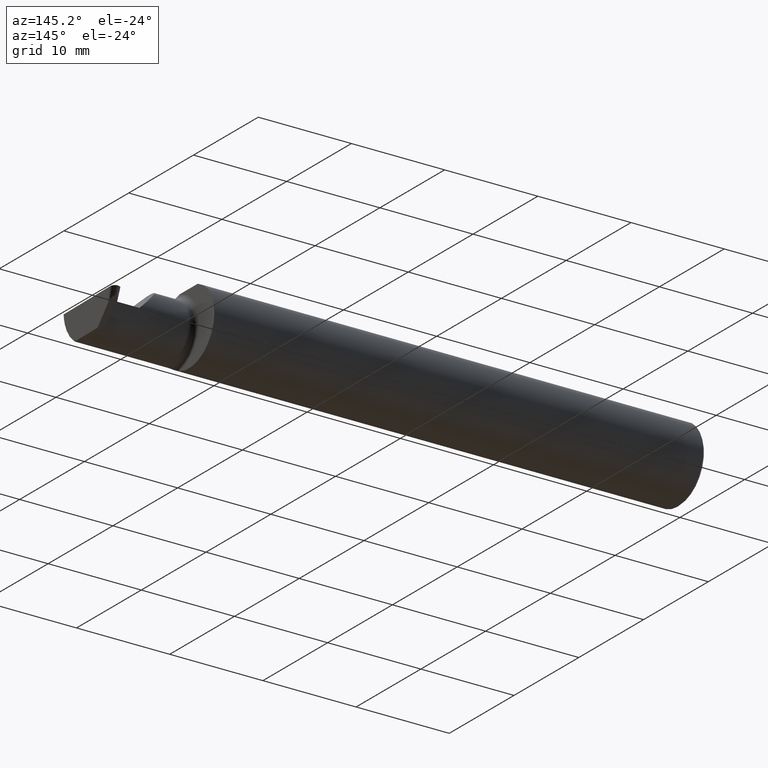
[diagram: clean part render]
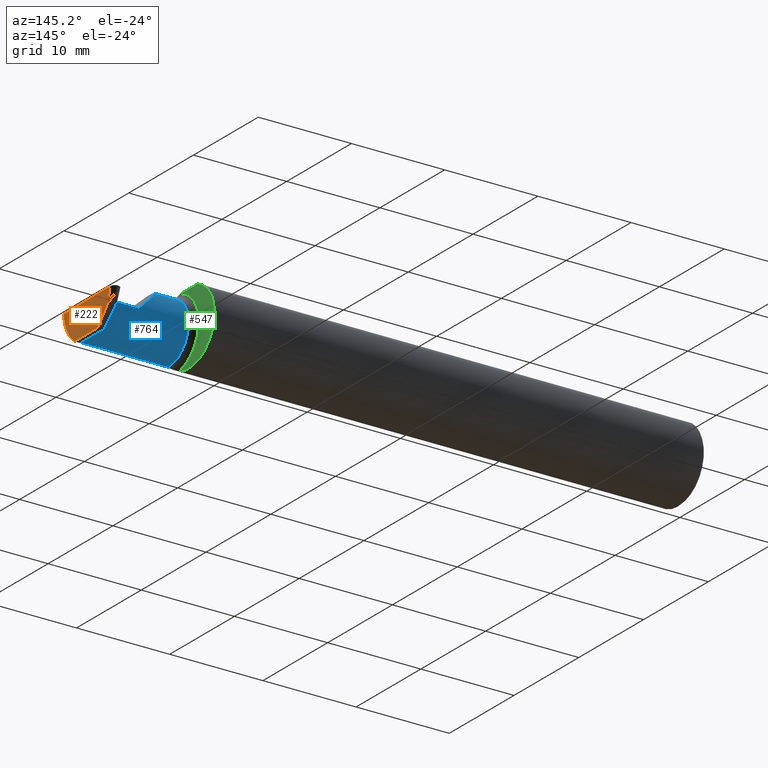
[diagram: same view with three faces highlighted in distinct colors, each labeled with its STEP entity id]
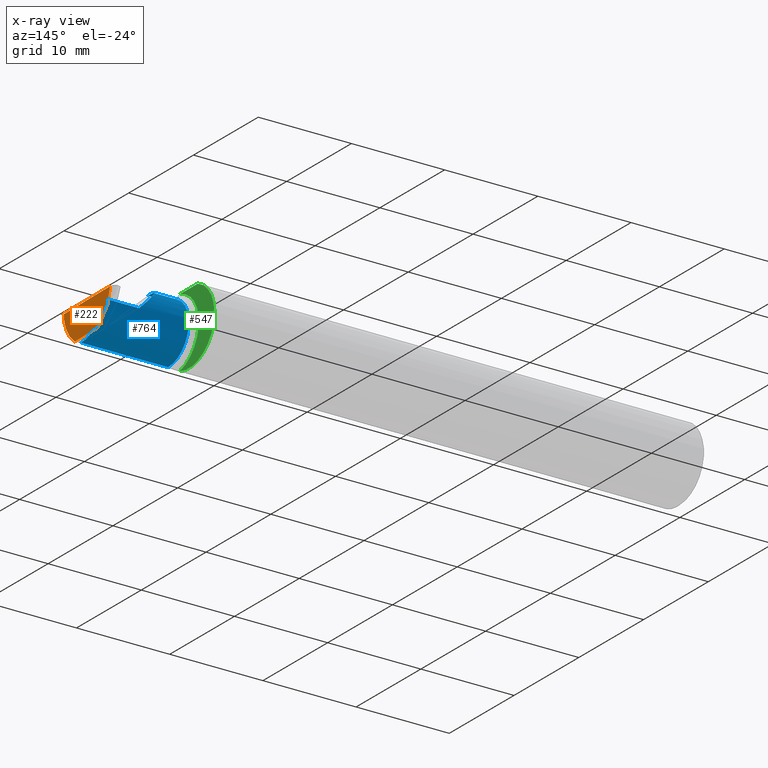
[diagram: x-ray of the same camera — body ghosted, the three highlighted faces saturated]
A machine part, auxiliary view with three faces highlighted in distinct colors.
The next image is the same camera in x-ray (body ghosted, the three faces saturated) — at least one of them is partly hidden behind the body in this view.
Their STEP definitions:

[orange] entity #222 — the highlighted planar face has unit normal (-0.9992, 0.0174, 0.0349).
#5 = CARTESIAN_POINT ( 'NONE',  ( 2.499981158297549744, 0.1333832200032812054, 0.000000000000000000 ) ) ;
#37 = VECTOR ( 'NONE', #796, 39.37007874015748143 ) ;
#59 = EDGE_CURVE ( 'NONE', #634, #687, #667, .T. ) ;
#69 = CARTESIAN_POINT ( 'NONE',  ( 2.497431183685123735, 0.1119346375676058408, -0.06229120642041485051 ) ) ;
#70 = DIRECTION ( 'NONE',  ( -0.9992386149554827179, 0.01744177490282277851, 0.03489949670250104552 ) ) ;
#85 = ORIENTED_EDGE ( 'NONE', *, *, #409, .T. ) ;
#91 = VERTEX_POINT ( 'NONE', #419 ) ;
#92 = VECTOR ( 'NONE', #670, 39.37007874015748143 ) ;
#96 = VERTEX_POINT ( 'NONE', #661 ) ;
#123 = CARTESIAN_POINT ( 'NONE',  ( 2.494928209896765114, -0.1560999999999999888, 0.000000000000000000 ) ) ;
#125 = CARTESIAN_POINT ( 'NONE',  ( 2.499997065210553426, 0.1342945264389270033, 0.000000000000000000 ) ) ;
#129 = CARTESIAN_POINT ( 'NONE',  ( 2.493178846255211134, -0.1561000000000000165, -0.05008759057876781273 ) ) ;
#158 = ORIENTED_EDGE ( 'NONE', *, *, #760, .F. ) ;
#184 = VECTOR ( 'NONE', #188, 39.37007874015748854 ) ;
#188 = DIRECTION ( 'NONE',  ( -0.03701368837992422695, -0.7066222423871549863, -0.7066222423871629799 ) ) ;
#193 =( BOUNDED_CURVE ( )  B_SPLINE_CURVE ( 3, ( #361, #483, #539, #605 ),
 .UNSPECIFIED., .F., .T. ) 
 B_SPLINE_CURVE_WITH_KNOTS ( ( 4, 4 ),
 ( 0.4273896528388657634, 0.4634648172053296156 ),
 .UNSPECIFIED. ) 
 CURVE ( )  GEOMETRIC_REPRESENTATION_ITEM ( )  RATIONAL_B_SPLINE_CURVE ( ( 1.000000000000000000, 0.9998915514833921492, 0.9998915514833921492, 1.000000000000000000 ) ) 
 REPRESENTATION_ITEM ( '' )  );
#196 = VERTEX_POINT ( 'NONE', #318 ) ;
#201 = CARTESIAN_POINT ( 'NONE',  ( 2.495646440191340965, 0.07786239281539021617, -0.09636345117263085680 ) ) ;
#222 = ADVANCED_FACE ( 'NONE', ( #386 ), #695, .F. ) ;
#232 = EDGE_CURVE ( 'NONE', #634, #96, #804, .T. ) ;
#235 = ORIENTED_EDGE ( 'NONE', *, *, #601, .F. ) ;
#240 = ORIENTED_EDGE ( 'NONE', *, *, #401, .T. ) ;
#241 = ORIENTED_EDGE ( 'NONE', *, *, #59, .T. ) ;
#294 = AXIS2_PLACEMENT_3D ( 'NONE', #125, #70, #310 ) ;
#305 = VERTEX_POINT ( 'NONE', #585 ) ;
#310 = DIRECTION ( 'NONE',  ( 0.03490480639812536257, 0.000000000000000000, 0.9993906415863165194 ) ) ;
#318 = CARTESIAN_POINT ( 'NONE',  ( 2.491731938133923130, -0.08909999999999985987, -0.1250000000000000278 ) ) ;
#361 = CARTESIAN_POINT ( 'NONE',  ( 2.491656083944432165, -0.09360841750841740472, -0.1249186702281520484 ) ) ;
#374 = CARTESIAN_POINT ( 'NONE',  ( 2.491792233050964533, -0.08564570651617034458, -0.1250000000000000278 ) ) ;
#386 = FACE_OUTER_BOUND ( 'NONE', #425, .T. ) ;
#401 = EDGE_CURVE ( 'NONE', #305, #196, #193, .T. ) ;
#409 = EDGE_CURVE ( 'NONE', #687, #91, #785, .T. ) ;
#419 = CARTESIAN_POINT ( 'NONE',  ( 2.494928209896765114, -0.1560999999999999888, 0.000000000000000000 ) ) ;
#425 = EDGE_LOOP ( 'NONE', ( #475, #241, #85, #158, #240, #235 ) ) ;
#475 = ORIENTED_EDGE ( 'NONE', *, *, #232, .F. ) ;
#483 = CARTESIAN_POINT ( 'NONE',  ( 2.491680411974855680, -0.09210618219364763437, -0.1249728871357008164 ) ) ;
#536 = CARTESIAN_POINT ( 'NONE',  ( 2.499992648711913734, 0.1334798692399048747, 0.0002806897643215264617 ) ) ;
#539 = CARTESIAN_POINT ( 'NONE',  ( 2.491705699447075428, -0.09060321336276823401, -0.1250000000000000833 ) ) ;
#559 = CARTESIAN_POINT ( 'NONE',  ( 2.491656083944432165, -0.09360841750841740472, -0.1249186702281520484 ) ) ;
#585 = CARTESIAN_POINT ( 'NONE',  ( 2.491656083944432165, -0.09360841750841740472, -0.1249186702281520484 ) ) ;
#601 = EDGE_CURVE ( 'NONE', #96, #196, #673, .T. ) ;
#602 = CARTESIAN_POINT ( 'NONE',  ( 2.499997065210553426, 0.1342945264389270033, 0.000000000000000000 ) ) ;
#605 = CARTESIAN_POINT ( 'NONE',  ( 2.491731938133923130, -0.08909999999999985987, -0.1250000000000000278 ) ) ;
#615 = DIRECTION ( 'NONE',  ( -0.01745240643727612520, -0.9998476951563912696, 0.000000000000000000 ) ) ;
#634 = VERTEX_POINT ( 'NONE', #69 ) ;
#661 = CARTESIAN_POINT ( 'NONE',  ( 2.494146424721983557, 0.04922584398802135747, -0.1250000000000000278 ) ) ;
#667 = LINE ( 'NONE', #536, #92 ) ;
#670 = DIRECTION ( 'NONE',  ( 0.03867711768363010783, 0.3253245514560481610, 0.9448111011136606230 ) ) ;
#673 = LINE ( 'NONE', #374, #755 ) ;
#683 = CARTESIAN_POINT ( 'NONE',  ( 2.492005481760536156, -0.1336908980339254205, -0.09488266708345013956 ) ) ;
#687 = VERTEX_POINT ( 'NONE', #5 ) ;
#695 = PLANE ( 'NONE',  #294 ) ;
#755 = VECTOR ( 'NONE', #615, 39.37007874015748854 ) ;
#760 = EDGE_CURVE ( 'NONE', #305, #91, #772, .T. ) ;
#772 =( BOUNDED_CURVE ( )  B_SPLINE_CURVE ( 3, ( #559, #683, #129, #123 ),
 .UNSPECIFIED., .F., .T. ) 
 B_SPLINE_CURVE_WITH_KNOTS ( ( 4, 4 ),
 ( 0.1796232990704038912, 1.107331509589568608 ),
 .UNSPECIFIED. ) 
 CURVE ( )  GEOMETRIC_REPRESENTATION_ITEM ( )  RATIONAL_B_SPLINE_CURVE ( ( 1.000000000000000000, 0.9295565493311498395, 0.9295565493311498395, 1.000000000000000000 ) ) 
 REPRESENTATION_ITEM ( '' )  );
#785 = LINE ( 'NONE', #602, #37 ) ;
#796 = DIRECTION ( 'NONE',  ( -0.01745240643727612520, -0.9998476951563912696, 0.000000000000000000 ) ) ;
#804 = LINE ( 'NONE', #201, #184 ) ;

[blue] entity #764 — the highlighted cylindrical surface (edge-blend (fillet) strip) has radius 3.175 mm, axis along (-1, -0, -0).
#3 = CARTESIAN_POINT ( 'NONE',  ( 2.100000000000000089, -0.08910000000000001252, 0.1250000000000000555 ) ) ;
#9 = FACE_OUTER_BOUND ( 'NONE', #354, .T. ) ;
#35 = DIRECTION ( 'NONE',  ( -1.000000000000000000, -0.000000000000000000, -0.000000000000000000 ) ) ;
#53 = AXIS2_PLACEMENT_3D ( 'NONE', #626, #756, #204 ) ;
#63 = CARTESIAN_POINT ( 'NONE',  ( 2.455817866257967275, 0.03559550628247790810, -0.008719559218017784372 ) ) ;
#104 = CARTESIAN_POINT ( 'NONE',  ( 2.184999999999999165, -0.08910000000000001252, 0.1250000000000000278 ) ) ;
#110 = CARTESIAN_POINT ( 'NONE',  ( 2.455919364163807739, 0.03569700418831858735, -0.005813039478678525517 ) ) ;
#135 = CARTESIAN_POINT ( 'NONE',  ( 2.236776695296636142, 0.03589999999999995972, 0.07322330470336316233 ) ) ;
#156 = VERTEX_POINT ( 'NONE', #3 ) ;
#164 = CARTESIAN_POINT ( 'NONE',  ( 2.467687720866161172, -0.01986741890188695875, -0.1250000000000000555 ) ) ;
#170 = CARTESIAN_POINT ( 'NONE',  ( 2.184999999999998277, -0.01587669529663690224, 0.1250000000000000555 ) ) ;
#171 = VERTEX_POINT ( 'NONE', #566 ) ;
#186 = VECTOR ( 'NONE', #35, 39.37007874015748143 ) ;
#198 = EDGE_CURVE ( 'NONE', #156, #295, #532, .T. ) ;
#199 = CARTESIAN_POINT ( 'NONE',  ( 2.310000000000000053, 0.03590000000000000135, 5.204748896376251932E-17 ) ) ;
#204 = DIRECTION ( 'NONE',  ( 0.000000000000000000, 0.000000000000000000, 1.000000000000000000 ) ) ;
#239 = CARTESIAN_POINT ( 'NONE',  ( 2.455817866257967275, 0.03559550628247790810, -0.008719559218017784372 ) ) ;
#244 = VERTEX_POINT ( 'NONE', #710 ) ;
#282 = VERTEX_POINT ( 'NONE', #645 ) ;
#288 = ORIENTED_EDGE ( 'NONE', *, *, #531, .T. ) ;
#291 = EDGE_CURVE ( 'NONE', #244, #156, #402, .T. ) ;
#295 = VERTEX_POINT ( 'NONE', #405 ) ;
#298 = CARTESIAN_POINT ( 'NONE',  ( 2.456122359975489111, 0.03589999999999995278, 0.000000000000000000 ) ) ;
#299 = ORIENTED_EDGE ( 'NONE', *, *, #622, .T. ) ;
#304 = VECTOR ( 'NONE', #694, 39.37007874015748143 ) ;
#354 = EDGE_LOOP ( 'NONE', ( #456, #735, #580, #754, #288, #299, #749, #638 ) ) ;
#360 = VERTEX_POINT ( 'NONE', #779 ) ;
#376 = CARTESIAN_POINT ( 'NONE',  ( 2.075000000000000178, -0.08909999999999999865, -0.1250000000000000278 ) ) ;
#381 = DIRECTION ( 'NONE',  ( -1.000000000000000000, -0.000000000000000000, -0.000000000000000000 ) ) ;
#396 = AXIS2_PLACEMENT_3D ( 'NONE', #440, #381, #616 ) ;
#397 = VECTOR ( 'NONE', #466, 39.37007874015748143 ) ;
#400 = EDGE_CURVE ( 'NONE', #597, #282, #674, .T. ) ;
#402 = LINE ( 'NONE', #521, #397 ) ;
#405 = CARTESIAN_POINT ( 'NONE',  ( 2.100000000000000089, -0.08909999999999999865, -0.1250000000000000555 ) ) ;
#423 = CARTESIAN_POINT ( 'NONE',  ( 2.456020862069648647, 0.03579850209415926660, -0.002906519739339262758 ) ) ;
#438 = CARTESIAN_POINT ( 'NONE',  ( 2.467773529127905707, -0.08910000000000001252, -0.1250000000000000278 ) ) ;
#440 = CARTESIAN_POINT ( 'NONE',  ( 2.100000000000000089, -0.08910000000000001252, 0.000000000000000000 ) ) ;
#448 = LINE ( 'NONE', #376, #304 ) ;
#456 = ORIENTED_EDGE ( 'NONE', *, *, #465, .F. ) ;
#465 = EDGE_CURVE ( 'NONE', #766, #360, #723, .T. ) ;
#466 = DIRECTION ( 'NONE',  ( -1.000000000000000000, -0.000000000000000000, -0.000000000000000000 ) ) ;
#468 = VECTOR ( 'NONE', #552, 39.37007874015748143 ) ;
#474 = LINE ( 'NONE', #656, #186 ) ;
#502 = EDGE_CURVE ( 'NONE', #360, #597, #474, .T. ) ;
#507 = CYLINDRICAL_SURFACE ( 'NONE', #53, 0.1250000000000000278 ) ;
#521 = CARTESIAN_POINT ( 'NONE',  ( 2.075000000000000178, -0.08910000000000001252, 0.1250000000000000278 ) ) ;
#531 = EDGE_CURVE ( 'NONE', #244, #171, #801, .T. ) ;
#532 = CIRCLE ( 'NONE', #396, 0.1250000000000000555 ) ;
#543 = CARTESIAN_POINT ( 'NONE',  ( 2.467773529127905707, -0.08910000000000001252, -0.1250000000000000278 ) ) ;
#550 = CARTESIAN_POINT ( 'NONE',  ( 2.463491912695082053, 0.03559550628246012371, -0.008719559218016929153 ) ) ;
#552 = DIRECTION ( 'NONE',  ( 1.000000000000000000, 0.000000000000000000, 0.000000000000000000 ) ) ;
#565 = CARTESIAN_POINT ( 'NONE',  ( 2.075000000000000178, 0.03590000000000000135, 5.204748896376251932E-17 ) ) ;
#566 = CARTESIAN_POINT ( 'NONE',  ( 2.310000000000000053, 0.03590000000000000135, 5.204748896376251932E-17 ) ) ;
#580 = ORIENTED_EDGE ( 'NONE', *, *, #198, .F. ) ;
#597 = VERTEX_POINT ( 'NONE', #63 ) ;
#616 = DIRECTION ( 'NONE',  ( 0.000000000000000000, 0.000000000000000000, 1.000000000000000000 ) ) ;
#622 = EDGE_CURVE ( 'NONE', #171, #282, #681, .T. ) ;
#626 = CARTESIAN_POINT ( 'NONE',  ( 2.075000000000000178, -0.08910000000000001252, 0.000000000000000000 ) ) ;
#638 = ORIENTED_EDGE ( 'NONE', *, *, #502, .F. ) ;
#645 = CARTESIAN_POINT ( 'NONE',  ( 2.456122359975489111, 0.03589999999999995278, 0.000000000000000000 ) ) ;
#656 = CARTESIAN_POINT ( 'NONE',  ( 2.074999999999999289, 0.03559550628247239168, -0.008719559218096552961 ) ) ;
#674 = B_SPLINE_CURVE_WITH_KNOTS ( 'NONE', 3,
 ( #239, #110, #423, #298 ),
 .UNSPECIFIED., .F., .F.,
 ( 4, 4 ),
 ( 0.000000000000000000, 1.000000000000000000 ),
 .UNSPECIFIED. ) ;
#681 = LINE ( 'NONE', #565, #468 ) ;
#694 = DIRECTION ( 'NONE',  ( -1.000000000000000000, -0.000000000000000000, -0.000000000000000000 ) ) ;
#710 = CARTESIAN_POINT ( 'NONE',  ( 2.184999999999999165, -0.08910000000000001252, 0.1250000000000000278 ) ) ;
#723 =( BOUNDED_CURVE ( )  B_SPLINE_CURVE ( 3, ( #543, #164, #792, #550 ),
 .UNSPECIFIED., .F., .T. ) 
 B_SPLINE_CURVE_WITH_KNOTS ( ( 4, 4 ),
 ( 3.176499238629679756, 4.677482395344783050 ),
 .UNSPECIFIED. ) 
 CURVE ( )  GEOMETRIC_REPRESENTATION_ITEM ( )  RATIONAL_B_SPLINE_CURVE ( ( 1.000000000000000000, 0.8209024677461181918, 0.8209024677461181918, 1.000000000000000000 ) ) 
 REPRESENTATION_ITEM ( '' )  );
#735 = ORIENTED_EDGE ( 'NONE', *, *, #778, .T. ) ;
#749 = ORIENTED_EDGE ( 'NONE', *, *, #400, .F. ) ;
#754 = ORIENTED_EDGE ( 'NONE', *, *, #291, .F. ) ;
#756 = DIRECTION ( 'NONE',  ( -1.000000000000000000, -0.000000000000000000, -0.000000000000000000 ) ) ;
#764 = ADVANCED_FACE ( 'NONE', ( #9 ), #507, .T. ) ;
#766 = VERTEX_POINT ( 'NONE', #438 ) ;
#778 = EDGE_CURVE ( 'NONE', #766, #295, #448, .T. ) ;
#779 = CARTESIAN_POINT ( 'NONE',  ( 2.463491912695082053, 0.03559550628246012371, -0.008719559218016929153 ) ) ;
#792 = CARTESIAN_POINT ( 'NONE',  ( 2.465949139812158020, 0.03076608555686791147, -0.07778349322819352873 ) ) ;
#801 =( BOUNDED_CURVE ( )  B_SPLINE_CURVE ( 3, ( #104, #170, #135, #199 ),
 .UNSPECIFIED., .F., .F. ) 
 B_SPLINE_CURVE_WITH_KNOTS ( ( 4, 4 ),
 ( 0.000000000000000000, 1.570796326794896336 ),
 .UNSPECIFIED. ) 
 CURVE ( )  GEOMETRIC_REPRESENTATION_ITEM ( )  RATIONAL_B_SPLINE_CURVE ( ( 1.000000000000000000, 0.8047378541243650485, 0.8047378541243650485, 1.000000000000000000 ) ) 
 REPRESENTATION_ITEM ( '' )  );

[green] entity #547 — the highlighted planar face has unit normal (1, 0, 0).
#32 = EDGE_LOOP ( 'NONE', ( #588, #441, #286, #715 ) ) ;
#52 = LINE ( 'NONE', #669, #703 ) ;
#58 = CARTESIAN_POINT ( 'NONE',  ( 2.075000000000000178, 0.000000000000000000, 0.000000000000000000 ) ) ;
#93 = CIRCLE ( 'NONE', #546, 0.1560999999999999888 ) ;
#121 = DIRECTION ( 'NONE',  ( 1.000000000000000000, 0.000000000000000000, 0.000000000000000000 ) ) ;
#132 = VERTEX_POINT ( 'NONE', #620 ) ;
#219 = DIRECTION ( 'NONE',  ( 0.000000000000000000, 0.000000000000000000, 1.000000000000000000 ) ) ;
#263 = DIRECTION ( 'NONE',  ( 0.000000000000000000, 0.000000000000000000, -1.000000000000000000 ) ) ;
#273 = DIRECTION ( 'NONE',  ( -1.000000000000000000, -0.000000000000000000, -0.000000000000000000 ) ) ;
#286 = ORIENTED_EDGE ( 'NONE', *, *, #798, .T. ) ;
#301 = DIRECTION ( 'NONE',  ( 0.000000000000000000, 1.000000000000000000, 0.000000000000000000 ) ) ;
#311 = DIRECTION ( 'NONE',  ( 1.000000000000000000, 0.000000000000000000, 0.000000000000000000 ) ) ;
#317 = EDGE_CURVE ( 'NONE', #451, #728, #480, .T. ) ;
#340 = EDGE_CURVE ( 'NONE', #728, #469, #93, .T. ) ;
#377 = FACE_OUTER_BOUND ( 'NONE', #32, .T. ) ;
#418 = EDGE_CURVE ( 'NONE', #132, #469, #52, .T. ) ;
#426 = CARTESIAN_POINT ( 'NONE',  ( 2.075000000000000178, 0.05497272050753933964, 0.1460999999999998689 ) ) ;
#441 = ORIENTED_EDGE ( 'NONE', *, *, #418, .F. ) ;
#451 = VERTEX_POINT ( 'NONE', #787 ) ;
#461 = DIRECTION ( 'NONE',  ( 0.000000000000000000, 0.000000000000000000, -1.000000000000000000 ) ) ;
#469 = VERTEX_POINT ( 'NONE', #426 ) ;
#480 = CIRCLE ( 'NONE', #781, 0.1499999999999999944 ) ;
#511 = CARTESIAN_POINT ( 'NONE',  ( 2.075000000000000178, -0.05502817059483724321, -0.1460791239054557156 ) ) ;
#546 = AXIS2_PLACEMENT_3D ( 'NONE', #653, #775, #461 ) ;
#547 = ADVANCED_FACE ( 'NONE', ( #377 ), #803, .T. ) ;
#579 = CARTESIAN_POINT ( 'NONE',  ( 2.075000000000000178, -0.08910000000000001252, 0.000000000000000000 ) ) ;
#588 = ORIENTED_EDGE ( 'NONE', *, *, #340, .T. ) ;
#612 = CIRCLE ( 'NONE', #718, 0.1560999999999999888 ) ;
#619 = CARTESIAN_POINT ( 'NONE',  ( 2.075000000000000178, 0.1560999999999999055, 0.000000000000000000 ) ) ;
#620 = CARTESIAN_POINT ( 'NONE',  ( 2.075000000000000178, -0.05497272050753934658, 0.1460999999999998689 ) ) ;
#641 = AXIS2_PLACEMENT_3D ( 'NONE', #619, #121, #263 ) ;
#653 = CARTESIAN_POINT ( 'NONE',  ( 2.075000000000000178, 0.000000000000000000, 0.000000000000000000 ) ) ;
#669 = CARTESIAN_POINT ( 'NONE',  ( 2.075000000000000178, 0.1560999999999999888, 0.1460999999999998689 ) ) ;
#703 = VECTOR ( 'NONE', #301, 39.37007874015748143 ) ;
#715 = ORIENTED_EDGE ( 'NONE', *, *, #317, .T. ) ;
#718 = AXIS2_PLACEMENT_3D ( 'NONE', #58, #311, #802 ) ;
#728 = VERTEX_POINT ( 'NONE', #511 ) ;
#775 = DIRECTION ( 'NONE',  ( 1.000000000000000000, 0.000000000000000000, 0.000000000000000000 ) ) ;
#781 = AXIS2_PLACEMENT_3D ( 'NONE', #579, #273, #219 ) ;
#787 = CARTESIAN_POINT ( 'NONE',  ( 2.075000000000000178, -0.05502817059483724321, 0.1460791239054557156 ) ) ;
#798 = EDGE_CURVE ( 'NONE', #132, #451, #612, .T. ) ;
#802 = DIRECTION ( 'NONE',  ( 0.000000000000000000, 0.000000000000000000, -1.000000000000000000 ) ) ;
#803 = PLANE ( 'NONE',  #641 ) ;